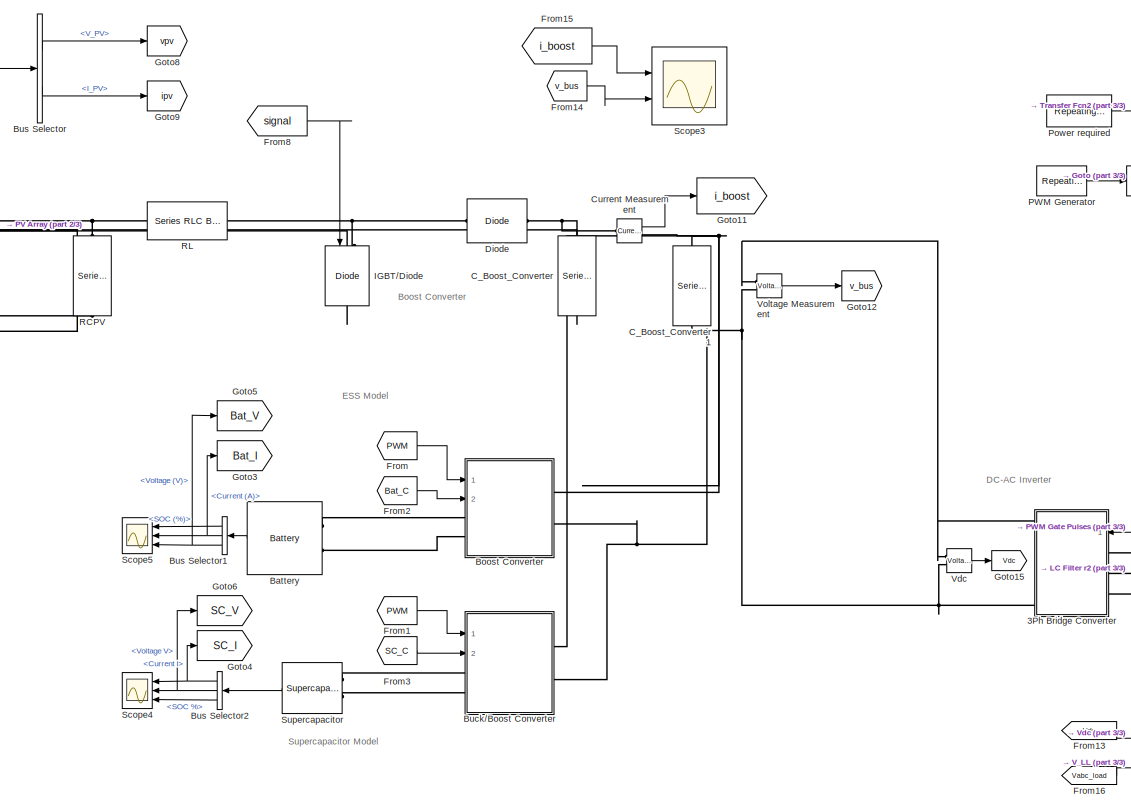
[diagram: root canvas - part 1/3, center side, full height]
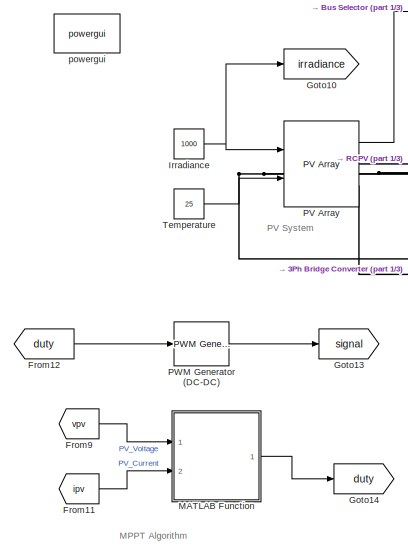
[diagram: root canvas - part 2/3, middle left region]
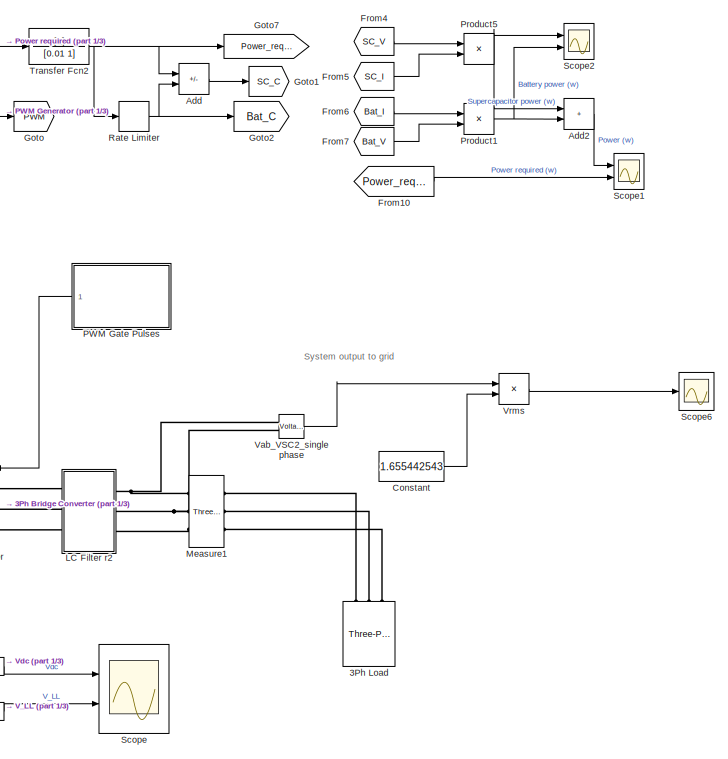
[diagram: root canvas - part 3/3, right side, full height]
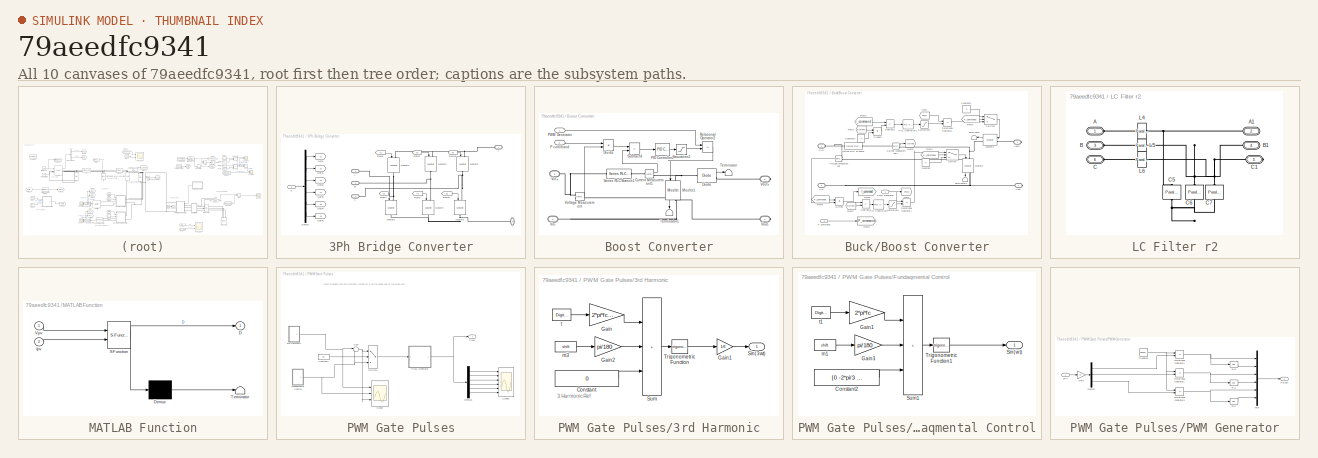
[diagram: thumbnail index - all 10 canvases of the model, root first then tree order]
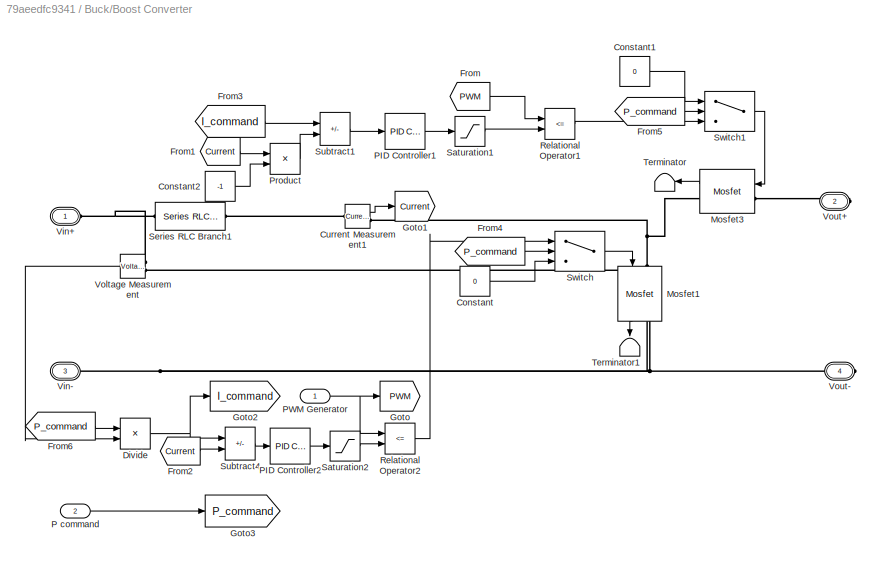
MODEL slx_79aeedfc9341
KIND model
CONFIG AbsTol = auto
CONFIG EnableMultiTasking = on
CONFIG FixedStep = auto
CONFIG MaxStep = auto
CONFIG MinStep = auto
CONFIG RelTol = 1e-3
CONFIG SampleTimeConstraint = Unconstrained
CONFIG SolverName = ode23s
CONFIG StartTime = 0.0
CONFIG StopTime = 2000
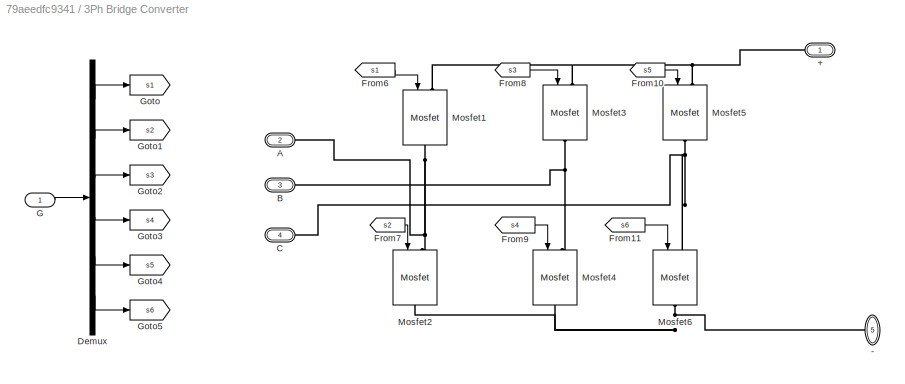
BLOCK [SubSystem] 3Ph Bridge Converter
  Ports = [1, 0, 0, 0, 0, 3, 2]
  RequestExecContextInheritance = off
BLOCK [PMIOPort] 3Ph Bridge Converter/+
  Side = Right
BLOCK [PMIOPort] 3Ph Bridge Converter/-
  Port = 5
  Side = Right
BLOCK [PMIOPort] 3Ph Bridge Converter/A
  Port = 2
  Side = Left
BLOCK [PMIOPort] 3Ph Bridge Converter/B
  Port = 3
  Side = Left
BLOCK [PMIOPort] 3Ph Bridge Converter/C
  Port = 4
  Side = Left
BLOCK [Demux] 3Ph Bridge Converter/Demux
  Outputs = 6
  Ports = [1, 6]
BLOCK [From] 3Ph Bridge Converter/From10
  CloseFcn = tagdialog Close
  GotoTag = s5
BLOCK [From] 3Ph Bridge Converter/From11
  CloseFcn = tagdialog Close
  GotoTag = s6
BLOCK [From] 3Ph Bridge Converter/From6
  CloseFcn = tagdialog Close
  GotoTag = s1
BLOCK [From] 3Ph Bridge Converter/From7
  CloseFcn = tagdialog Close
  GotoTag = s2
BLOCK [From] 3Ph Bridge Converter/From8
  CloseFcn = tagdialog Close
  GotoTag = s3
BLOCK [From] 3Ph Bridge Converter/From9
  CloseFcn = tagdialog Close
  GotoTag = s4
BLOCK [Inport] 3Ph Bridge Converter/G
BLOCK [Goto] 3Ph Bridge Converter/Goto
  GotoTag = s1
BLOCK [Goto] 3Ph Bridge Converter/Goto1
  GotoTag = s2
BLOCK [Goto] 3Ph Bridge Converter/Goto2
  GotoTag = s3
BLOCK [Goto] 3Ph Bridge Converter/Goto3
  GotoTag = s4
BLOCK [Goto] 3Ph Bridge Converter/Goto4
  GotoTag = s5
BLOCK [Goto] 3Ph Bridge Converter/Goto5
  GotoTag = s6
BLOCK [Reference] 3Ph Bridge Converter/Mosfet1  REF=spsMosfetLib/Mosfet
  NameLocation = left
  Ports = [1, 0, 0, 0, 0, 1, 1]
  SourceBlock = spsMosfetLib/Mosfet
  SourceProductBaseCode = PS
  SourceType = Mosfet
BLOCK [Reference] 3Ph Bridge Converter/Mosfet2  REF=spsMosfetLib/Mosfet
  NameLocation = left
  Ports = [1, 0, 0, 0, 0, 1, 1]
  SourceBlock = spsMosfetLib/Mosfet
  SourceProductBaseCode = PS
  SourceType = Mosfet
BLOCK [Reference] 3Ph Bridge Converter/Mosfet3  REF=spsMosfetLib/Mosfet
  NameLocation = left
  Ports = [1, 0, 0, 0, 0, 1, 1]
  SourceBlock = spsMosfetLib/Mosfet
  SourceProductBaseCode = PS
  SourceType = Mosfet
BLOCK [Reference] 3Ph Bridge Converter/Mosfet4  REF=spsMosfetLib/Mosfet
  NameLocation = left
  Ports = [1, 0, 0, 0, 0, 1, 1]
  SourceBlock = spsMosfetLib/Mosfet
  SourceProductBaseCode = PS
  SourceType = Mosfet
BLOCK [Reference] 3Ph Bridge Converter/Mosfet5  REF=spsMosfetLib/Mosfet
  NameLocation = left
  Ports = [1, 0, 0, 0, 0, 1, 1]
  SourceBlock = spsMosfetLib/Mosfet
  SourceProductBaseCode = PS
  SourceType = Mosfet
BLOCK [Reference] 3Ph Bridge Converter/Mosfet6  REF=spsMosfetLib/Mosfet
  NameLocation = left
  Ports = [1, 0, 0, 0, 0, 1, 1]
  SourceBlock = spsMosfetLib/Mosfet
  SourceProductBaseCode = PS
  SourceType = Mosfet
BLOCK [Reference] 3Ph Load   REF=spsThreePhaseParallelRLCLoadLib/Three-Phase
Parallel RLC Load
  AttributesFormatString = \n
  NameLocation = right
  Ports = [0, 0, 0, 0, 0, 3]
  SourceBlock = spsThreePhaseParallelRLCLoadLib/Three-Phase\nParallel RLC Load
  SourceProductBaseCode = PS
  SourceType = Three-Phase Parallel RLC Load
BLOCK [Sum] Add
  IconShape = rectangular
  Inputs = +-
  Ports = [2, 1]
BLOCK [Sum] Add2
  IconShape = rectangular
  Ports = [2, 1]
BLOCK [Reference] Battery  REF=spsBatteryLib/Battery
  Ports = [0, 1, 0, 0, 0, 2]
  SourceBlock = spsBatteryLib/Battery
  SourceProductBaseCode = PS
  SourceType = Battery
BLOCK [SubSystem] Boost Converter
  Ports = [2, 0, 0, 0, 0, 2, 2]
  RequestExecContextInheritance = off
BLOCK [Reference] Boost Converter/Current Measurement1  REF=spsCurrentMeasurementLib/Current Measurement
  Ports = [0, 1, 0, 0, 0, 1, 1]
  SourceBlock = spsCurrentMeasurementLib/Current Measurement
  SourceProductBaseCode = PS
  SourceType = Current Measurement
BLOCK [Reference] Boost Converter/Diode  REF=spsDiodeLib/Diode
  Ports = [0, 1, 0, 0, 0, 1, 1]
  SourceBlock = spsDiodeLib/Diode
  SourceProductBaseCode = PS
  SourceType = Diode
BLOCK [Product] Boost Converter/Divide
  Inputs = */
  Ports = [2, 1]
BLOCK [Reference] Boost Converter/Mosfet1  REF=spsMosfetLib/Mosfet
  NameLocation = left
  Ports = [1, 1, 0, 0, 0, 1, 1]
  SourceBlock = spsMosfetLib/Mosfet
  SourceProductBaseCode = PS
  SourceType = Mosfet
BLOCK [Inport] Boost Converter/P command
  Port = 2
BLOCK [Reference] Boost Converter/PID Controller2  REF=slpidlib/PID Controller
  Ports = [1, 1]
  SourceBlock = slpidlib/PID Controller
  SourceProductBaseCode = SL
  SourceType = PID 1dof
BLOCK [Inport] Boost Converter/PWM Generator
BLOCK [RelationalOperator] Boost Converter/Relational Operator2
  InputSameDT = off
  Operator = <=
  OutDataTypeStr = boolean
  Ports = [2, 1]
BLOCK [Saturate] Boost Converter/Saturation2
  LowerLimit = -1
  UpperLimit = 1
BLOCK [Reference] Boost Converter/Series RLC Branch1  REF=spsSeriesRLCBranchLib/Series RLC Branch
  Ports = [0, 0, 0, 0, 0, 1, 1]
  SourceBlock = spsSeriesRLCBranchLib/Series RLC Branch
  SourceProductBaseCode = PS
  SourceType = Series RLC Branch
BLOCK [Sum] Boost Converter/Subtract4
  IconShape = rectangular
  Inputs = +-
  Ports = [2, 1]
BLOCK [Terminator] Boost Converter/Terminator
BLOCK [Terminator] Boost Converter/Terminator1
  NameLocation = left
BLOCK [PMIOPort] Boost Converter/Vin+
  Side = Left
  Tag = PMCPort
BLOCK [PMIOPort] Boost Converter/Vin-
  Port = 3
  Side = Left
  Tag = PMCPort
BLOCK [Reference] Boost Converter/Voltage Measurement  REF=spsVoltageMeasurementLib/Voltage Measurement
  Ports = [0, 1, 0, 0, 0, 2]
  SourceBlock = spsVoltageMeasurementLib/Voltage Measurement
  SourceProductBaseCode = PS
  SourceType = Voltage Measurement
BLOCK [PMIOPort] Boost Converter/Vout+
  NameLocation = top
  Port = 2
  Side = Right
  Tag = PMCPort
BLOCK [PMIOPort] Boost Converter/Vout-
  NameLocation = top
  Port = 4
  Side = Right
  Tag = PMCPort
BLOCK [SubSystem] Buck//Boost Converter
  Ports = [2, 0, 0, 0, 0, 2, 2]
  RequestExecContextInheritance = off
BLOCK [Constant] Buck//Boost Converter/Constant
  Value = 0
BLOCK [Constant] Buck//Boost Converter/Constant1
  Value = 0
BLOCK [Constant] Buck//Boost Converter/Constant2
  Value = -1
BLOCK [Reference] Buck//Boost Converter/Current Measurement1  REF=spsCurrentMeasurementLib/Current Measurement
  Ports = [0, 1, 0, 0, 0, 1, 1]
  SourceBlock = spsCurrentMeasurementLib/Current Measurement
  SourceProductBaseCode = PS
  SourceType = Current Measurement
BLOCK [Product] Buck//Boost Converter/Divide
  Inputs = */
  Ports = [2, 1]
BLOCK [From] Buck//Boost Converter/From
  GotoTag = PWM
BLOCK [From] Buck//Boost Converter/From1
  GotoTag = Current
BLOCK [From] Buck//Boost Converter/From2
  GotoTag = Current
BLOCK [From] Buck//Boost Converter/From3
  GotoTag = I_command
BLOCK [From] Buck//Boost Converter/From4
  GotoTag = P_command
BLOCK [From] Buck//Boost Converter/From5
  GotoTag = P_command
BLOCK [From] Buck//Boost Converter/From6
  GotoTag = P_command
BLOCK [Goto] Buck//Boost Converter/Goto
  GotoTag = PWM
BLOCK [Goto] Buck//Boost Converter/Goto1
  GotoTag = Current
BLOCK [Goto] Buck//Boost Converter/Goto2
  GotoTag = I_command
BLOCK [Goto] Buck//Boost Converter/Goto3
  GotoTag = P_command
BLOCK [Reference] Buck//Boost Converter/Mosfet1  REF=spsMosfetLib/Mosfet
  NameLocation = left
  Ports = [1, 1, 0, 0, 0, 1, 1]
  SourceBlock = spsMosfetLib/Mosfet
  SourceProductBaseCode = PS
  SourceType = Mosfet
BLOCK [Reference] Buck//Boost Converter/Mosfet3  REF=spsMosfetLib/Mosfet
  NameLocation = top
  Ports = [1, 1, 0, 0, 0, 1, 1]
  SourceBlock = spsMosfetLib/Mosfet
  SourceProductBaseCode = PS
  SourceType = Mosfet
BLOCK [Inport] Buck//Boost Converter/P command
  Port = 2
BLOCK [Reference] Buck//Boost Converter/PID Controller1  REF=slpidlib/PID Controller
  Ports = [1, 1]
  SourceBlock = slpidlib/PID Controller
  SourceProductBaseCode = SL
  SourceType = PID 1dof
BLOCK [Reference] Buck//Boost Converter/PID Controller2  REF=slpidlib/PID Controller
  Ports = [1, 1]
  SourceBlock = slpidlib/PID Controller
  SourceProductBaseCode = SL
  SourceType = PID 1dof
BLOCK [Inport] Buck//Boost Converter/PWM Generator
BLOCK [Product] Buck//Boost Converter/Product
  Ports = [2, 1]
  RndMeth = Zero
BLOCK [RelationalOperator] Buck//Boost Converter/Relational Operator1
  InputSameDT = off
  Operator = <=
  OutDataTypeStr = boolean
  Ports = [2, 1]
BLOCK [RelationalOperator] Buck//Boost Converter/Relational Operator2
  InputSameDT = off
  Operator = <=
  OutDataTypeStr = boolean
  Ports = [2, 1]
BLOCK [Saturate] Buck//Boost Converter/Saturation1
  LowerLimit = -1
  UpperLimit = 1
BLOCK [Saturate] Buck//Boost Converter/Saturation2
  LowerLimit = -1
  UpperLimit = 1
BLOCK [Reference] Buck//Boost Converter/Series RLC Branch1  REF=spsSeriesRLCBranchLib/Series RLC Branch
  Ports = [0, 0, 0, 0, 0, 1, 1]
  SourceBlock = spsSeriesRLCBranchLib/Series RLC Branch
  SourceProductBaseCode = PS
  SourceType = Series RLC Branch
BLOCK [Sum] Buck//Boost Converter/Subtract1
  IconShape = rectangular
  Inputs = --
  Ports = [2, 1]
BLOCK [Sum] Buck//Boost Converter/Subtract4
  IconShape = rectangular
  Inputs = +-
  Ports = [2, 1]
BLOCK [Switch] Buck//Boost Converter/Switch
  Criteria = u2 > Threshold
  InputSameDT = off
  SaturateOnIntegerOverflow = off
BLOCK [Switch] Buck//Boost Converter/Switch1
  Criteria = u2 > Threshold
  InputSameDT = off
  SaturateOnIntegerOverflow = off
BLOCK [Terminator] Buck//Boost Converter/Terminator
  NameLocation = top
BLOCK [Terminator] Buck//Boost Converter/Terminator1
  NameLocation = left
BLOCK [PMIOPort] Buck//Boost Converter/Vin+
  Side = Left
  Tag = PMCPort
BLOCK [PMIOPort] Buck//Boost Converter/Vin-
  Port = 3
  Side = Left
  Tag = PMCPort
BLOCK [Reference] Buck//Boost Converter/Voltage Measurement  REF=spsVoltageMeasurementLib/Voltage Measurement
  NameLocation = top
  Ports = [0, 1, 0, 0, 0, 2]
  SourceBlock = spsVoltageMeasurementLib/Voltage Measurement
  SourceProductBaseCode = PS
  SourceType = Voltage Measurement
BLOCK [PMIOPort] Buck//Boost Converter/Vout+
  NameLocation = top
  Port = 2
  Side = Right
  Tag = PMCPort
BLOCK [PMIOPort] Buck//Boost Converter/Vout-
  NameLocation = top
  Port = 4
  Side = Right
  Tag = PMCPort
BLOCK [BusSelector] Bus Selector
  OutputSignals = V_PV,I_PV
  Ports = [1, 2]
BLOCK [BusSelector] Bus Selector1
  OutputSignals = SOC (%),Current (A),Voltage (V)
  Ports = [1, 3]
BLOCK [BusSelector] Bus Selector2
  OutputSignals = Current I,Voltage V,SOC %
  Ports = [1, 3]
BLOCK [Reference] C_Boost_Converter  REF=spsSeriesRLCBranchLib/Series RLC Branch
  NameLocation = left
  Ports = [0, 0, 0, 0, 0, 1, 1]
  SourceBlock = spsSeriesRLCBranchLib/Series RLC Branch
  SourceProductBaseCode = PS
  SourceType = Series RLC Branch
BLOCK [Reference] C_Boost_Converter1  REF=spsSeriesRLCBranchLib/Series RLC Branch
  NameLocation = left
  Ports = [0, 0, 0, 0, 0, 1, 1]
  SourceBlock = spsSeriesRLCBranchLib/Series RLC Branch
  SourceProductBaseCode = PS
  SourceType = Series RLC Branch
BLOCK [Constant] Constant
  Value = 1.655442543
BLOCK [Reference] Current Measurement  REF=spsCurrentMeasurementLib/Current Measurement
  Ports = [0, 1, 0, 0, 0, 1, 1]
  SourceBlock = spsCurrentMeasurementLib/Current Measurement
  SourceProductBaseCode = PS
  SourceType = Current Measurement
  UserDataPersistent = on
BLOCK [Reference] Diode  REF=spsDiodeLib/Diode
  Ports = [0, 0, 0, 0, 0, 1, 1]
  SourceBlock = spsDiodeLib/Diode
  SourceProductBaseCode = PS
  SourceType = Diode
BLOCK [From] From
  GotoTag = PWM
BLOCK [From] From1
  GotoTag = PWM
BLOCK [From] From10
  GotoTag = Power_required
BLOCK [From] From11
  GotoTag = ipv
  TagVisibility = global
BLOCK [From] From12
  GotoTag = duty
  TagVisibility = global
BLOCK [From] From13
  GotoTag = Vdc
  TagVisibility = global
BLOCK [From] From14
  GotoTag = v_bus
  TagVisibility = global
BLOCK [From] From15
  GotoTag = i_boost
  TagVisibility = global
BLOCK [From] From16
  GotoTag = Vabc_load
  TagVisibility = global
BLOCK [From] From2
  GotoTag = Bat_C
BLOCK [From] From3
  GotoTag = SC_C
BLOCK [From] From4
  GotoTag = SC_V
BLOCK [From] From5
  GotoTag = SC_I
BLOCK [From] From6
  GotoTag = Bat_I
BLOCK [From] From7
  GotoTag = Bat_V
BLOCK [From] From8
  GotoTag = signal
  TagVisibility = global
BLOCK [From] From9
  GotoTag = vpv
  TagVisibility = global
BLOCK [Goto] Goto
  GotoTag = PWM
BLOCK [Goto] Goto1
  GotoTag = SC_C
BLOCK [Goto] Goto10
  GotoTag = irradiance
  TagVisibility = global
BLOCK [Goto] Goto11
  GotoTag = i_boost
  TagVisibility = global
BLOCK [Goto] Goto12
  GotoTag = v_bus
  TagVisibility = global
BLOCK [Goto] Goto13
  GotoTag = signal
  TagVisibility = global
BLOCK [Goto] Goto14
  GotoTag = duty
  TagVisibility = global
BLOCK [Goto] Goto15
  GotoTag = Vdc
  TagVisibility = global
BLOCK [Goto] Goto2
  GotoTag = Bat_C
BLOCK [Goto] Goto3
  GotoTag = Bat_I
BLOCK [Goto] Goto4
  GotoTag = SC_I
BLOCK [Goto] Goto5
  GotoTag = Bat_V
BLOCK [Goto] Goto6
  GotoTag = SC_V
BLOCK [Goto] Goto7
  GotoTag = Power_required
BLOCK [Goto] Goto8
  GotoTag = vpv
  TagVisibility = global
BLOCK [Goto] Goto9
  GotoTag = ipv
  TagVisibility = global
BLOCK [Reference] IGBT//Diode  REF=spsIGBTDiodeLib/IGBT//Diode
  NameLocation = left
  Ports = [1, 0, 0, 0, 0, 1, 1]
  SourceBlock = spsIGBTDiodeLib/IGBT//Diode
  SourceProductBaseCode = PS
  SourceType = IGBT/Diode
BLOCK [Constant] Irradiance
  Value = 1000
BLOCK [SubSystem] LC Filter r2
  Ports = [0, 0, 0, 0, 0, 3, 3]
  RequestExecContextInheritance = off
BLOCK [PMIOPort] LC Filter r2/A
  Side = Left
BLOCK [PMIOPort] LC Filter r2/A1
  Port = 2
  Side = Right
BLOCK [PMIOPort] LC Filter r2/B
  Port = 3
  Side = Left
BLOCK [PMIOPort] LC Filter r2/B1
  Port = 4
  Side = Right
BLOCK [PMIOPort] LC Filter r2/C
  Port = 6
  Side = Left
BLOCK [PMIOPort] LC Filter r2/C1
  Port = 5
  Side = Right
BLOCK [Reference] LC Filter r2/C5  REF=spsParallelRLCBranchLib/Parallel RLC Branch
  AttributesFormatString = \n
  NameLocation = left
  Ports = [0, 0, 0, 0, 0, 1, 1]
  SourceBlock = spsParallelRLCBranchLib/Parallel RLC Branch
  SourceProductBaseCode = PS
  SourceType = Parallel RLC Branch
BLOCK [Reference] LC Filter r2/C6  REF=spsParallelRLCBranchLib/Parallel RLC Branch
  AttributesFormatString = \n
  NameLocation = left
  Ports = [0, 0, 0, 0, 0, 1, 1]
  SourceBlock = spsParallelRLCBranchLib/Parallel RLC Branch
  SourceProductBaseCode = PS
  SourceType = Parallel RLC Branch
BLOCK [Reference] LC Filter r2/C7  REF=spsParallelRLCBranchLib/Parallel RLC Branch
  AttributesFormatString = \n
  NameLocation = left
  Ports = [0, 0, 0, 0, 0, 1, 1]
  SourceBlock = spsParallelRLCBranchLib/Parallel RLC Branch
  SourceProductBaseCode = PS
  SourceType = Parallel RLC Branch
BLOCK [Reference] LC Filter r2/L4  REF=spsParallelRLCBranchLib/Parallel RLC Branch
  AttributesFormatString = \n
  NameLocation = top
  Ports = [0, 0, 0, 0, 0, 1, 1]
  SourceBlock = spsParallelRLCBranchLib/Parallel RLC Branch
  SourceProductBaseCode = PS
  SourceType = Parallel RLC Branch
BLOCK [Reference] LC Filter r2/L5  REF=spsParallelRLCBranchLib/Parallel RLC Branch
  AttributesFormatString = \n
  Ports = [0, 0, 0, 0, 0, 1, 1]
  SourceBlock = spsParallelRLCBranchLib/Parallel RLC Branch
  SourceProductBaseCode = PS
  SourceType = Parallel RLC Branch
BLOCK [Reference] LC Filter r2/L6  REF=spsParallelRLCBranchLib/Parallel RLC Branch
  AttributesFormatString = \n
  Ports = [0, 0, 0, 0, 0, 1, 1]
  SourceBlock = spsParallelRLCBranchLib/Parallel RLC Branch
  SourceProductBaseCode = PS
  SourceType = Parallel RLC Branch
BLOCK [SubSystem] MATLAB Function
  ErrorFcn = Stateflow.Translate.translate
  PermitHierarchicalResolution = ExplicitOnly
  Ports = [2, 1]
  RequestExecContextInheritance = off
  SFBlockType = MATLAB Function
  TreatAsAtomicUnit = on
BLOCK [Demux] MATLAB Function/ Demux 
  Outputs = 1
  Ports = [1, 1]
BLOCK [S-Function] MATLAB Function/ SFunction 
  EnableBusSupport = on
  FunctionName = sf_sfun
  PortCounts = [2 2]
  Ports = [2, 2]
  SFcnIsStateOwnerBlock = off
  SFunctionDeploymentMode = off
  Tag = Stateflow S-Function 2
BLOCK [Terminator] MATLAB Function/ Terminator 
BLOCK [Outport] MATLAB Function/D
BLOCK [Inport] MATLAB Function/Ipv
  Port = 2
BLOCK [Inport] MATLAB Function/Vpv
BLOCK [Reference] Measure1  REF=spsThreePhaseVIMeasurementLib/Three-Phase
V-I Measurement
  Ports = [0, 0, 0, 0, 0, 3, 3]
  SourceBlock = spsThreePhaseVIMeasurementLib/Three-Phase\nV-I Measurement
  SourceProductBaseCode = PS
  SourceType = Three-Phase VI Measurement
BLOCK [Reference] PV Array  REF=spsPVArrayLib/PV Array
  Ports = [2, 1, 0, 0, 0, 0, 2]
  SourceBlock = spsPVArrayLib/PV Array
  SourceProductBaseCode = PS
  SourceType = PV array
BLOCK [SubSystem] PWM Gate Pulses
  Ports = [0, 1]
  RequestExecContextInheritance = off
BLOCK [SubSystem] PWM Gate Pulses/3rd Harmonic
  Ports = [0, 1]
  RequestExecContextInheritance = off
BLOCK [Constant] PWM Gate Pulses/3rd Harmonic/Constant
  SampleTime = Ts
  Value = 0
BLOCK [Gain] PWM Gate Pulses/3rd Harmonic/Gain
  Gain = 2*pi*fc*3
  OutDataTypeStr = Inherit: Same as input
  ParamDataTypeStr = Inherit: Same as input
  SaturateOnIntegerOverflow = on
BLOCK [Gain] PWM Gate Pulses/3rd Harmonic/Gain1
  Gain = 1/6
BLOCK [Gain] PWM Gate Pulses/3rd Harmonic/Gain2
  Gain = pi/180
  OutDataTypeStr = Inherit: Same as input
  ParamDataTypeStr = Inherit: Same as input
  SaturateOnIntegerOverflow = on
BLOCK [Outport] PWM Gate Pulses/3rd Harmonic/Sin(3wt)
BLOCK [Sum] PWM Gate Pulses/3rd Harmonic/Sum
  IconShape = rectangular
  InputSameDT = on
  Inputs = +++
  OutDataTypeStr = Inherit: Same as first input
  Ports = [3, 1]
  SampleTime = Ts
  SaturateOnIntegerOverflow = on
BLOCK [Trigonometry] PWM Gate Pulses/3rd Harmonic/Trigonometric Function
  Ports = [1, 1]
  SampleTime = Ts
BLOCK [Constant] PWM Gate Pulses/3rd Harmonic/m3
  SampleTime = Ts
  Value = shift
BLOCK [DigitalClock] PWM Gate Pulses/3rd Harmonic/t
  SampleTime = Ts
BLOCK [Constant] PWM Gate Pulses/Constant1
  SampleTime = Ts
  Value = inj
BLOCK [Demux] PWM Gate Pulses/Demux1
  Outputs = 6
  Ports = [1, 6]
BLOCK [SubSystem] PWM Gate Pulses/Fundaqmental Control
  Ports = [0, 1]
  RequestExecContextInheritance = off
BLOCK [Constant] PWM Gate Pulses/Fundaqmental Control/Constant2
  SampleTime = Ts
  Value = [0 -2*pi/3 2*pi/3]
BLOCK [Gain] PWM Gate Pulses/Fundaqmental Control/Gain1
  Gain = 2*pi*fc
  OutDataTypeStr = Inherit: Same as input
  ParamDataTypeStr = Inherit: Same as input
  SaturateOnIntegerOverflow = on
BLOCK [Gain] PWM Gate Pulses/Fundaqmental Control/Gain3
  Gain = pi/180
  OutDataTypeStr = Inherit: Same as input
  ParamDataTypeStr = Inherit: Same as input
  SaturateOnIntegerOverflow = on
BLOCK [Outport] PWM Gate Pulses/Fundaqmental Control/Sin(wt)
BLOCK [Sum] PWM Gate Pulses/Fundaqmental Control/Sum1
  IconShape = rectangular
  InputSameDT = on
  Inputs = +++
  OutDataTypeStr = Inherit: Same as first input
  Ports = [3, 1]
  SampleTime = Ts
  SaturateOnIntegerOverflow = on
BLOCK [Trigonometry] PWM Gate Pulses/Fundaqmental Control/Trigonometric Function1
  Ports = [1, 1]
  SampleTime = Ts
BLOCK [Constant] PWM Gate Pulses/Fundaqmental Control/m1
  SampleTime = Ts
  Value = shift
BLOCK [DigitalClock] PWM Gate Pulses/Fundaqmental Control/t1
  SampleTime = Ts
BLOCK [Outport] PWM Gate Pulses/PWM
  NameLocation = top
BLOCK [SubSystem] PWM Gate Pulses/PWM Generator
  InitFcn = Ts=2e-6
  Ports = [1, 1]
  RequestExecContextInheritance = off
BLOCK [Inport] PWM Gate Pulses/PWM Generator/3Ph
BLOCK [Logic] PWM Gate Pulses/PWM Generator/BL1
  Inputs = 1
  NameLocation = top
  Operator = NOT
  Ports = [1, 1]
  SampleTime = Ts
BLOCK [Logic] PWM Gate Pulses/PWM Generator/BL2
  Inputs = 1
  NameLocation = top
  Operator = NOT
  Ports = [1, 1]
  SampleTime = Ts
BLOCK [Logic] PWM Gate Pulses/PWM Generator/BL5
  Inputs = 1
  NameLocation = top
  Operator = NOT
  Ports = [1, 1]
  SampleTime = Ts
BLOCK [Demux] PWM Gate Pulses/PWM Generator/Demux
  Outputs = 3
  Ports = [1, 3]
BLOCK [Gain] PWM Gate Pulses/PWM Generator/Gain
  Gain = m
BLOCK [Mux] PWM Gate Pulses/PWM Generator/Mux
  DisplayOption = bar
  Inputs = 6
  Ports = [6, 1]
BLOCK [Outport] PWM Gate Pulses/PWM Generator/Pulses
BLOCK [RelationalOperator] PWM Gate Pulses/PWM Generator/Relational Operator1
  InputSameDT = off
  Operator = <=
  Ports = [2, 1]
BLOCK [RelationalOperator] PWM Gate Pulses/PWM Generator/Relational Operator2
  InputSameDT = off
  Operator = <=
  Ports = [2, 1]
BLOCK [RelationalOperator] PWM Gate Pulses/PWM Generator/Relational Operator3
  InputSameDT = off
  Operator = <=
  Ports = [2, 1]
BLOCK [Reference] PWM Gate Pulses/PWM Generator/Triangle2  REF=simulink/Sources/Repeating
Sequence
  Ports = [0, 1]
  SourceBlock = simulink/Sources/Repeating\nSequence
  SourceProductBaseCode = SL
  SourceType = Repeating table
BLOCK [Scope] PWM Gate Pulses/Scope
  Floating = off
  NumInputPorts = 3
  Ports = [3]
  ScopeSpecificationString = C++SS(StrPVP('Location','[1, 53, 1921, 1031]'),StrPVP('Open','off'),MxPVP('AxesTitles',54,'struct(''axes1'',''%<SignalLabel>'',''axes2'',''%<SignalLabel>'',''axes3'',''%<SignalLabel>'')'),StrPVP('YMin','-1~-1.25~-5'),StrPVP('YMax','1~1.25~5'),StrPVP('SaveName','ScopeData3'),StrPVP('DataFormat','StructureWithTime'),StrPVP('BlockParamSampleTime','0'),StrPVP('LimitDataPoints','on'),StrPVP('Decimation...<+45ch>
BLOCK [Scope] PWM Gate Pulses/Scope1
  Floating = off
  NumInputPorts = 6
  Ports = [6]
  ScopeSpecificationString = C++SS(StrPVP('Location','[188, 390, 512, 629]'),StrPVP('Open','off'),MxPVP('AxesTitles',54,'struct(''axes1'',''%<SignalLabel>'',''axes2'',''%<SignalLabel>'',''axes3'',''%<SignalLabel>'',''axes4'',''%<SignalLabel>'',''axes5'',''%<SignalLabel>'',''axes6'',''%<SignalLabel>'')'),StrPVP('YMin','-5~-5~-5~-5~-5~-5'),StrPVP('YMax','5~5~5~5~5~5'),StrPVP('SaveName','ScopeData1'),StrPVP('DataFormat','Structu...<+143ch>
BLOCK [Sum] PWM Gate Pulses/Sum
  Inputs = |++
  Ports = [2, 1]
BLOCK [Switch] PWM Gate Pulses/Switch1
  SampleTime = Ts
  Threshold = 0.5
BLOCK [Reference] PWM Generator  REF=simulink/Sources/Repeating
Sequence
  Ports = [0, 1]
  SourceBlock = simulink/Sources/Repeating\nSequence
  SourceProductBaseCode = SL
  SourceType = Repeating table
BLOCK [Reference] PWM Generator (DC-DC)  REF=spsPWMGeneratorDCDCLib/PWM Generator
(DC-DC)
  Ports = [1, 1]
  SourceBlock = spsPWMGeneratorDCDCLib/PWM Generator\n(DC-DC)
  SourceProductBaseCode = PS
  SourceType = PWM Generator (DC-DC)
BLOCK [Reference] Power required  REF=simulink/Sources/Repeating
Sequence
  Ports = [0, 1]
  SourceBlock = simulink/Sources/Repeating\nSequence
  SourceProductBaseCode = SL
  SourceType = Repeating table
BLOCK [Product] Product1
  Ports = [2, 1]
  RndMeth = Zero
BLOCK [Product] Product5
  Ports = [2, 1]
  RndMeth = Zero
BLOCK [Reference] RCPV  REF=spsSeriesRLCBranchLib/Series RLC Branch
  NameLocation = left
  Ports = [0, 0, 0, 0, 0, 1, 1]
  SourceBlock = spsSeriesRLCBranchLib/Series RLC Branch
  SourceProductBaseCode = PS
  SourceType = Series RLC Branch
BLOCK [Reference] RL  REF=spsSeriesRLCBranchLib/Series RLC Branch
  NameLocation = top
  Ports = [0, 0, 0, 0, 0, 1, 1]
  SourceBlock = spsSeriesRLCBranchLib/Series RLC Branch
  SourceProductBaseCode = PS
  SourceType = Series RLC Branch
BLOCK [RateLimiter] Rate Limiter
  FallingSlewLimit = -300
  RisingSlewLimit = 300
  SampleTimeMode = inherited
BLOCK [Scope] Scope
  Floating = off
  NumInputPorts = 2
  Ports = [2]
  ScopeSpecificationString = Simulink.scopes.TimeScopeBlockCfg('CurrentConfiguration', extmgr.ConfigurationSet(extmgr.Configuration('Core','General UI',true),extmgr.Configuration('Core','Source UI',true),extmgr.Configuration('Sources','WiredSimulink',true,'DataLogging',true,'DataLoggingSaveFormat','StructureWithTime','DataLoggingMaxPoints','1000000','DataLoggingLimitDataPoints',true,'DataLoggingDecimation','1','DataLoggingDec...<+2446ch>
BLOCK [Scope] Scope1
  Floating = off
  NameLocation = top
  NumInputPorts = 2
  Ports = [2]
  ScopeSpecificationString = Simulink.scopes.TimeScopeBlockCfg('CurrentConfiguration', extmgr.ConfigurationSet(extmgr.Configuration('Core','General UI',true,'FigureColor',[1 1 1]),extmgr.Configuration('Core','Source UI',true),extmgr.Configuration('Sources','WiredSimulink',true,'DataLoggingSaveFormat','Array','DataLoggingDecimation','1','DataLoggingDecimateData',true),extmgr.Configuration('Visuals','Time Domain',true,'Serializ...<+2525ch>
BLOCK [Scope] Scope2
  Floating = off
  NameLocation = top
  NumInputPorts = 2
  Ports = [2]
  ScopeSpecificationString = Simulink.scopes.TimeScopeBlockCfg('CurrentConfiguration', extmgr.ConfigurationSet(extmgr.Configuration('Core','General UI',true,'FigureColor',[1 1 1]),extmgr.Configuration('Core','Source UI',true),extmgr.Configuration('Sources','WiredSimulink',true,'DataLoggingSaveFormat','Array','DataLoggingDecimation','1','DataLoggingDecimateData',true),extmgr.Configuration('Visuals','Time Domain',true,'Serializ...<+2450ch>
BLOCK [Scope] Scope3
  Floating = off
  NumInputPorts = 2
  Ports = [2]
  ScopeSpecificationString = Simulink.scopes.TimeScopeBlockCfg('CurrentConfiguration', extmgr.ConfigurationSet(extmgr.Configuration('Core','General UI',true),extmgr.Configuration('Core','Source UI',true),extmgr.Configuration('Sources','WiredSimulink',true,'DataLoggingVariableName','ScopeData1'),extmgr.Configuration('Visuals','Time Domain',true,'SerializedDisplays',{struct('MinYLimReal','-148.49445','MaxYLimReal','170.91288','...<+1441ch>
BLOCK [Scope] Scope4
  Floating = off
  NumInputPorts = 3
  Ports = [3]
  ScopeSpecificationString = Simulink.scopes.TimeScopeBlockCfg('CurrentConfiguration', extmgr.ConfigurationSet(extmgr.Configuration('Core','General UI',true,'FigureColor',[1 1 1]),extmgr.Configuration('Core','Source UI',true),extmgr.Configuration('Sources','WiredSimulink',true,'DataLoggingSaveFormat','Array','DataLoggingDecimation','1','DataLoggingDecimateData',true),extmgr.Configuration('Visuals','Time Domain',true,'Serializ...<+3300ch>
BLOCK [Scope] Scope5
  Floating = off
  NumInputPorts = 3
  Ports = [3]
  ScopeSpecificationString = Simulink.scopes.TimeScopeBlockCfg('CurrentConfiguration', extmgr.ConfigurationSet(extmgr.Configuration('Core','General UI',true,'FigureColor',[1 1 1]),extmgr.Configuration('Core','Source UI',true),extmgr.Configuration('Sources','WiredSimulink',true,'DataLoggingSaveFormat','Array','DataLoggingDecimation','1','DataLoggingDecimateData',true),extmgr.Configuration('Visuals','Time Domain',true,'Serializ...<+3305ch>
BLOCK [Scope] Scope6
  Floating = off
  NumInputPorts = 1
  Ports = [1]
  ScopeSpecificationString = Simulink.scopes.TimeScopeBlockCfg('CurrentConfiguration', extmgr.ConfigurationSet(extmgr.Configuration('Core','General UI',true,'FigureColor',[1 1 1]),extmgr.Configuration('Core','Source UI',true),extmgr.Configuration('Sources','WiredSimulink',true,'DataLogging',true,'DataLoggingVariableName','ScopeData2','DataLoggingSaveFormat','StructureWithTime','DataLoggingDecimation','1','DataLoggingDecimateD...<+1809ch>
BLOCK [Reference] Supercapacitor  REF=spsSupercapacitorLib/Supercapacitor
  Ports = [0, 1, 0, 0, 0, 2]
  SourceBlock = spsSupercapacitorLib/Supercapacitor
  SourceProductBaseCode = PS
  SourceType = Supercapacitor
BLOCK [Constant] Temperature
  Value = 25
BLOCK [TransferFcn] Transfer Fcn2
  Denominator = [0.01 1]
BLOCK [Reference] Vab_VSC2_single phase  REF=spsVoltageMeasurementLib/Voltage Measurement
  AttributesFormatString = \n
  Ports = [0, 1, 0, 0, 0, 2]
  SourceBlock = spsVoltageMeasurementLib/Voltage Measurement
  SourceProductBaseCode = PS
  SourceType = Voltage Measurement
  Tag = PoWeRsYsTeMmEaSuReMeNt
BLOCK [Reference] Vdc   REF=spsVoltageMeasurementLib/Voltage Measurement
  AttributesFormatString = \n
  NameLocation = top
  Ports = [0, 1, 0, 0, 0, 2]
  SourceBlock = spsVoltageMeasurementLib/Voltage Measurement
  SourceProductBaseCode = PS
  SourceType = Voltage Measurement
  Tag = PoWeRsYsTeMmEaSuReMeNt
BLOCK [Reference] Voltage Measurement  REF=spsVoltageMeasurementLib/Voltage Measurement
  Ports = [0, 1, 0, 0, 0, 2]
  SourceBlock = spsVoltageMeasurementLib/Voltage Measurement
  SourceProductBaseCode = PS
  SourceType = Voltage Measurement
  UserDataPersistent = on
BLOCK [Product] Vrms
  Ports = [2, 1]
BLOCK [Reference] powergui  REF=spspowerguiLib/powergui
  Ports = []
  Priority = 1
  SourceBlock = spspowerguiLib/powergui
  SourceProductBaseCode = PS
  SourceType = PSB option menu block
ANNOTATION (root): Boost Converter
ANNOTATION (root): DC-AC Inverter
ANNOTATION (root): ESS Model
ANNOTATION (root): MPPT Algorithm
ANNOTATION (root): PV System
ANNOTATION (root): Supercapacitor Model
ANNOTATION (root): System output to grid
ANNOTATION PWM Gate Pulses: Note:To enable the 3rd Harmonic injection, tick the check box of the block properties
ANNOTATION PWM Gate Pulses/3rd Harmonic: 3 Harmonic Ref
LINE 3Ph Bridge Converter/Demux:1 -> 3Ph Bridge Converter/Goto:1
LINE 3Ph Bridge Converter/Demux:2 -> 3Ph Bridge Converter/Goto1:1
LINE 3Ph Bridge Converter/Demux:3 -> 3Ph Bridge Converter/Goto2:1
LINE 3Ph Bridge Converter/Demux:4 -> 3Ph Bridge Converter/Goto3:1
LINE 3Ph Bridge Converter/Demux:5 -> 3Ph Bridge Converter/Goto4:1
LINE 3Ph Bridge Converter/Demux:6 -> 3Ph Bridge Converter/Goto5:1
LINE 3Ph Bridge Converter/From10:1 -> 3Ph Bridge Converter/Mosfet5:1
LINE 3Ph Bridge Converter/From11:1 -> 3Ph Bridge Converter/Mosfet6:1
LINE 3Ph Bridge Converter/From6:1 -> 3Ph Bridge Converter/Mosfet1:1
LINE 3Ph Bridge Converter/From7:1 -> 3Ph Bridge Converter/Mosfet2:1
LINE 3Ph Bridge Converter/From8:1 -> 3Ph Bridge Converter/Mosfet3:1
LINE 3Ph Bridge Converter/From9:1 -> 3Ph Bridge Converter/Mosfet4:1
LINE 3Ph Bridge Converter/G:1 -> 3Ph Bridge Converter/Demux:1
LINE Add2:1 -> Scope1:1
LINE Add:1 -> Goto1:1
LINE Battery:1 -> Bus Selector1:1
LINE Boost Converter/Current Measurement1:1 -> Boost Converter/Subtract4:2
LINE Boost Converter/Diode:1 -> Boost Converter/Terminator:1
LINE Boost Converter/Divide:1 -> Boost Converter/Subtract4:1
LINE Boost Converter/Mosfet1:1 -> Boost Converter/Terminator1:1
LINE Boost Converter/P command:1 -> Boost Converter/Divide:1
LINE Boost Converter/PID Controller2:1 -> Boost Converter/Saturation2:1
LINE Boost Converter/PWM Generator:1 -> Boost Converter/Relational Operator2:1
LINE Boost Converter/Relational Operator2:1 -> Boost Converter/Mosfet1:1
LINE Boost Converter/Saturation2:1 -> Boost Converter/Relational Operator2:2
LINE Boost Converter/Subtract4:1 -> Boost Converter/PID Controller2:1
LINE Boost Converter/Voltage Measurement:1 -> Boost Converter/Divide:2
LINE Buck//Boost Converter/Constant1:1 -> Buck//Boost Converter/Switch1:1
LINE Buck//Boost Converter/Constant2:1 -> Buck//Boost Converter/Product:2
LINE Buck//Boost Converter/Constant:1 -> Buck//Boost Converter/Switch:3
LINE Buck//Boost Converter/Current Measurement1:1 -> Buck//Boost Converter/Goto1:1
NET Buck//Boost Converter/Divide:1 -> Buck//Boost Converter/Goto2:1, Buck//Boost Converter/Subtract4:1
LINE Buck//Boost Converter/From1:1 -> Buck//Boost Converter/Product:1
LINE Buck//Boost Converter/From2:1 -> Buck//Boost Converter/Subtract4:2
LINE Buck//Boost Converter/From3:1 -> Buck//Boost Converter/Subtract1:1
LINE Buck//Boost Converter/From4:1 -> Buck//Boost Converter/Switch:2
LINE Buck//Boost Converter/From5:1 -> Buck//Boost Converter/Switch1:2
LINE Buck//Boost Converter/From6:1 -> Buck//Boost Converter/Divide:1
LINE Buck//Boost Converter/From:1 -> Buck//Boost Converter/Relational Operator1:1
LINE Buck//Boost Converter/Mosfet1:1 -> Buck//Boost Converter/Terminator1:1
LINE Buck//Boost Converter/Mosfet3:1 -> Buck//Boost Converter/Terminator:1
LINE Buck//Boost Converter/P command:1 -> Buck//Boost Converter/Goto3:1
LINE Buck//Boost Converter/PID Controller1:1 -> Buck//Boost Converter/Saturation1:1
LINE Buck//Boost Converter/PID Controller2:1 -> Buck//Boost Converter/Saturation2:1
NET Buck//Boost Converter/PWM Generator:1 -> Buck//Boost Converter/Goto:1, Buck//Boost Converter/Relational Operator2:1
LINE Buck//Boost Converter/Product:1 -> Buck//Boost Converter/Subtract1:2
LINE Buck//Boost Converter/Relational Operator1:1 -> Buck//Boost Converter/Switch1:3
LINE Buck//Boost Converter/Relational Operator2:1 -> Buck//Boost Converter/Switch:1
LINE Buck//Boost Converter/Saturation1:1 -> Buck//Boost Converter/Relational Operator1:2
LINE Buck//Boost Converter/Saturation2:1 -> Buck//Boost Converter/Relational Operator2:2
LINE Buck//Boost Converter/Subtract1:1 -> Buck//Boost Converter/PID Controller1:1
LINE Buck//Boost Converter/Subtract4:1 -> Buck//Boost Converter/PID Controller2:1
LINE Buck//Boost Converter/Switch1:1 -> Buck//Boost Converter/Mosfet3:1
LINE Buck//Boost Converter/Switch:1 -> Buck//Boost Converter/Mosfet1:1
LINE Buck//Boost Converter/Voltage Measurement:1 -> Buck//Boost Converter/Divide:2
LINE Bus Selector1:1 -> Scope5:1
NET Bus Selector1:2 -> Goto3:1, Scope5:2
NET Bus Selector1:3 -> Goto5:1, Scope5:3
NET Bus Selector2:1 -> Goto4:1, Scope4:1
NET Bus Selector2:2 -> Goto6:1, Scope4:2
LINE Bus Selector2:3 -> Scope4:3
LINE Bus Selector:1 -> Goto8:1
LINE Bus Selector:2 -> Goto9:1
LINE Constant:1 -> Vrms:2
LINE Current Measurement:1 -> Goto11:1
LINE From10:1 -> Scope1:2
LINE From11:1 -> MATLAB Function:2
LINE From12:1 -> PWM Generator (DC-DC):1
LINE From13:1 -> Scope:1
LINE From14:1 -> Scope3:2
LINE From15:1 -> Scope3:1
LINE From16:1 -> Scope:2
LINE From1:1 -> Buck//Boost Converter:1
LINE From2:1 -> Boost Converter:2
LINE From3:1 -> Buck//Boost Converter:2
LINE From4:1 -> Product5:1
LINE From5:1 -> Product5:2
LINE From6:1 -> Product1:1
LINE From7:1 -> Product1:2
LINE From8:1 -> IGBT//Diode:1
LINE From9:1 -> MATLAB Function:1
LINE From:1 -> Boost Converter:1
NET Irradiance:1 -> Goto10:1, PV Array:1
LINE MATLAB Function:1 -> Goto14:1
LINE PV Array:1 -> Bus Selector:1
LINE PWM Gate Pulses/3rd Harmonic/Constant:1 -> PWM Gate Pulses/3rd Harmonic/Sum:3
LINE PWM Gate Pulses/3rd Harmonic/Gain1:1 -> PWM Gate Pulses/3rd Harmonic/Sin(3wt):1
LINE PWM Gate Pulses/3rd Harmonic/Gain2:1 -> PWM Gate Pulses/3rd Harmonic/Sum:2
LINE PWM Gate Pulses/3rd Harmonic/Gain:1 -> PWM Gate Pulses/3rd Harmonic/Sum:1
LINE PWM Gate Pulses/3rd Harmonic/Sum:1 -> PWM Gate Pulses/3rd Harmonic/Trigonometric Function:1
LINE PWM Gate Pulses/3rd Harmonic/Trigonometric Function:1 -> PWM Gate Pulses/3rd Harmonic/Gain1:1
LINE PWM Gate Pulses/3rd Harmonic/m3:1 -> PWM Gate Pulses/3rd Harmonic/Gain2:1
LINE PWM Gate Pulses/3rd Harmonic/t:1 -> PWM Gate Pulses/3rd Harmonic/Gain:1
NET PWM Gate Pulses/3rd Harmonic:1 -> PWM Gate Pulses/Scope:1, PWM Gate Pulses/Sum:1
LINE PWM Gate Pulses/Constant1:1 -> PWM Gate Pulses/Switch1:2
LINE PWM Gate Pulses/Demux1:1 -> PWM Gate Pulses/Scope1:1
LINE PWM Gate Pulses/Demux1:2 -> PWM Gate Pulses/Scope1:2
LINE PWM Gate Pulses/Demux1:3 -> PWM Gate Pulses/Scope1:3
LINE PWM Gate Pulses/Demux1:4 -> PWM Gate Pulses/Scope1:4
LINE PWM Gate Pulses/Demux1:5 -> PWM Gate Pulses/Scope1:5
LINE PWM Gate Pulses/Demux1:6 -> PWM Gate Pulses/Scope1:6
LINE PWM Gate Pulses/Fundaqmental Control/Constant2:1 -> PWM Gate Pulses/Fundaqmental Control/Sum1:3
LINE PWM Gate Pulses/Fundaqmental Control/Gain1:1 -> PWM Gate Pulses/Fundaqmental Control/Sum1:1
LINE PWM Gate Pulses/Fundaqmental Control/Gain3:1 -> PWM Gate Pulses/Fundaqmental Control/Sum1:2
LINE PWM Gate Pulses/Fundaqmental Control/Sum1:1 -> PWM Gate Pulses/Fundaqmental Control/Trigonometric Function1:1
LINE PWM Gate Pulses/Fundaqmental Control/Trigonometric Function1:1 -> PWM Gate Pulses/Fundaqmental Control/Sin(wt):1
LINE PWM Gate Pulses/Fundaqmental Control/m1:1 -> PWM Gate Pulses/Fundaqmental Control/Gain3:1
LINE PWM Gate Pulses/Fundaqmental Control/t1:1 -> PWM Gate Pulses/Fundaqmental Control/Gain1:1
NET PWM Gate Pulses/Fundaqmental Control:1 -> PWM Gate Pulses/Scope:2, PWM Gate Pulses/Sum:2, PWM Gate Pulses/Switch1:3
LINE PWM Gate Pulses/PWM Generator/3Ph:1 -> PWM Gate Pulses/PWM Generator/Gain:1
LINE PWM Gate Pulses/PWM Generator/BL1:1 -> PWM Gate Pulses/PWM Generator/Mux:4
LINE PWM Gate Pulses/PWM Generator/BL2:1 -> PWM Gate Pulses/PWM Generator/Mux:6
LINE PWM Gate Pulses/PWM Generator/BL5:1 -> PWM Gate Pulses/PWM Generator/Mux:2
LINE PWM Gate Pulses/PWM Generator/Demux:1 -> PWM Gate Pulses/PWM Generator/Relational Operator2:2
LINE PWM Gate Pulses/PWM Generator/Demux:2 -> PWM Gate Pulses/PWM Generator/Relational Operator1:2
LINE PWM Gate Pulses/PWM Generator/Demux:3 -> PWM Gate Pulses/PWM Generator/Relational Operator3:2
LINE PWM Gate Pulses/PWM Generator/Gain:1 -> PWM Gate Pulses/PWM Generator/Demux:1
LINE PWM Gate Pulses/PWM Generator/Mux:1 -> PWM Gate Pulses/PWM Generator/Pulses:1
NET PWM Gate Pulses/PWM Generator/Relational Operator1:1 -> PWM Gate Pulses/PWM Generator/BL1:1, PWM Gate Pulses/PWM Generator/Mux:3
NET PWM Gate Pulses/PWM Generator/Relational Operator2:1 -> PWM Gate Pulses/PWM Generator/BL5:1, PWM Gate Pulses/PWM Generator/Mux:1
NET PWM Gate Pulses/PWM Generator/Relational Operator3:1 -> PWM Gate Pulses/PWM Generator/BL2:1, PWM Gate Pulses/PWM Generator/Mux:5
NET PWM Gate Pulses/PWM Generator/Triangle2:1 -> PWM Gate Pulses/PWM Generator/Relational Operator1:1, PWM Gate Pulses/PWM Generator/Relational Operator2:1, PWM Gate Pulses/PWM Generator/Relational Operator3:1
NET PWM Gate Pulses/PWM Generator:1 -> PWM Gate Pulses/Demux1:1, PWM Gate Pulses/PWM:1
NET PWM Gate Pulses/Sum:1 -> PWM Gate Pulses/Scope:3, PWM Gate Pulses/Switch1:1
LINE PWM Gate Pulses/Switch1:1 -> PWM Gate Pulses/PWM Generator:1
LINE PWM Gate Pulses:1 -> 3Ph Bridge Converter:1
LINE PWM Generator (DC-DC):1 -> Goto13:1
LINE PWM Generator:1 -> Goto:1
LINE Power required:1 -> Transfer Fcn2:1
NET Product1:1 -> Add2:2, Scope2:2
NET Product5:1 -> Add2:1, Scope2:1
NET Rate Limiter:1 -> Add:2, Goto2:1
LINE Supercapacitor:1 -> Bus Selector2:1
LINE Temperature:1 -> PV Array:2
NET Transfer Fcn2:1 -> Add:1, Goto7:1, Rate Limiter:1
LINE Vab_VSC2_single phase:1 -> Vrms:1
LINE Vdc :1 -> Goto15:1
LINE Voltage Measurement:1 -> Goto12:1
LINE Vrms:1 -> Scope6:1
PNET net1: 3Ph Bridge Converter/+:RConn1 -- 3Ph Bridge Converter/Mosfet1:LConn1 -- 3Ph Bridge Converter/Mosfet3:LConn1 -- 3Ph Bridge Converter/Mosfet5:LConn1
PNET net2: 3Ph Bridge Converter/-:RConn1 -- 3Ph Bridge Converter/Mosfet2:RConn1 -- 3Ph Bridge Converter/Mosfet4:RConn1 -- 3Ph Bridge Converter/Mosfet6:RConn1
PNET net3: 3Ph Bridge Converter/A:RConn1 -- 3Ph Bridge Converter/Mosfet1:RConn1 -- 3Ph Bridge Converter/Mosfet2:LConn1
PNET net4: 3Ph Bridge Converter/B:RConn1 -- 3Ph Bridge Converter/Mosfet3:RConn1 -- 3Ph Bridge Converter/Mosfet4:LConn1
PNET net5: 3Ph Bridge Converter/C:RConn1 -- 3Ph Bridge Converter/Mosfet5:RConn1 -- 3Ph Bridge Converter/Mosfet6:LConn1
PLINE 3Ph Bridge Converter:LConn1 -- LC Filter r2:LConn1
PLINE 3Ph Bridge Converter:LConn2 -- LC Filter r2:LConn2
PLINE 3Ph Bridge Converter:LConn3 -- LC Filter r2:LConn3
PNET net6: 3Ph Bridge Converter:RConn1 -- Boost Converter:RConn1 -- Buck//Boost Converter:RConn1 -- C_Boost_Converter1:LConn1 -- Current Measurement:RConn1 -- Vdc :LConn1 -- Voltage Measurement:LConn1
PNET net7: 3Ph Bridge Converter:RConn2 -- Boost Converter:RConn2 -- Buck//Boost Converter:RConn2 -- C_Boost_Converter1:RConn1 -- C_Boost_Converter:RConn1 -- IGBT//Diode:RConn1 -- PV Array:RConn2 -- RCPV:RConn1 -- Vdc :LConn2 -- Voltage Measurement:LConn2
PLINE 3Ph Load :LConn1 -- Measure1:RConn1
PLINE 3Ph Load :LConn2 -- Measure1:RConn2
PLINE 3Ph Load :LConn3 -- Measure1:RConn3
PLINE Battery:LConn1 -- Boost Converter:LConn1
PLINE Battery:LConn2 -- Boost Converter:LConn2
PLINE Boost Converter/Current Measurement1:LConn1 -- Boost Converter/Series RLC Branch1:RConn1
PNET net8: Boost Converter/Current Measurement1:RConn1 -- Boost Converter/Diode:LConn1 -- Boost Converter/Mosfet1:LConn1
PLINE Boost Converter/Diode:RConn1 -- Boost Converter/Vout+:RConn1
PNET net9: Boost Converter/Mosfet1:RConn1 -- Boost Converter/Vin-:RConn1 -- Boost Converter/Voltage Measurement:LConn2 -- Boost Converter/Vout-:RConn1
PNET net10: Boost Converter/Series RLC Branch1:LConn1 -- Boost Converter/Vin+:RConn1 -- Boost Converter/Voltage Measurement:LConn1
PLINE Buck//Boost Converter/Current Measurement1:LConn1 -- Buck//Boost Converter/Series RLC Branch1:RConn1
PNET net11: Buck//Boost Converter/Current Measurement1:RConn1 -- Buck//Boost Converter/Mosfet1:LConn1 -- Buck//Boost Converter/Mosfet3:RConn1
PNET net12: Buck//Boost Converter/Mosfet1:RConn1 -- Buck//Boost Converter/Vin-:RConn1 -- Buck//Boost Converter/Voltage Measurement:LConn2 -- Buck//Boost Converter/Vout-:RConn1
PLINE Buck//Boost Converter/Mosfet3:LConn1 -- Buck//Boost Converter/Vout+:RConn1
PNET net13: Buck//Boost Converter/Series RLC Branch1:LConn1 -- Buck//Boost Converter/Vin+:RConn1 -- Buck//Boost Converter/Voltage Measurement:LConn1
PLINE Buck//Boost Converter:LConn1 -- Supercapacitor:LConn1
PLINE Buck//Boost Converter:LConn2 -- Supercapacitor:LConn2
PNET net14: C_Boost_Converter:LConn1 -- Current Measurement:LConn1 -- Diode:RConn1
PNET net15: Diode:LConn1 -- IGBT//Diode:LConn1 -- RL:LConn1
PNET net16: LC Filter r2/A1:RConn1 -- LC Filter r2/C5:LConn1 -- LC Filter r2/L4:RConn1
PLINE LC Filter r2/A:RConn1 -- LC Filter r2/L4:LConn1
PNET net17: LC Filter r2/B1:RConn1 -- LC Filter r2/C6:LConn1 -- LC Filter r2/L5:RConn1
PLINE LC Filter r2/B:RConn1 -- LC Filter r2/L5:LConn1
PNET net18: LC Filter r2/C1:RConn1 -- LC Filter r2/C7:LConn1 -- LC Filter r2/L6:RConn1
PNET net19: LC Filter r2/C5:RConn1 -- LC Filter r2/C6:RConn1 -- LC Filter r2/C7:RConn1
PLINE LC Filter r2/C:RConn1 -- LC Filter r2/L6:LConn1
PNET net20: LC Filter r2:RConn1 -- Measure1:LConn1 -- Vab_VSC2_single phase:LConn1
PNET net21: LC Filter r2:RConn2 -- Measure1:LConn2 -- Vab_VSC2_single phase:LConn2
PLINE LC Filter r2:RConn3 -- Measure1:LConn3
PNET net22: PV Array:RConn1 -- RCPV:LConn1 -- RL:RConn1
note: NET lines group one-source signal fan-out (src -> all destinations, sorted); 1:1 wires keep LINE; PNET lines group multi-terminal physical nets as a canonical sorted terminal list (undirected conserving connections); 2-terminal nets keep the pairwise PLINE form
CHART MATLAB Function states=1 transitions=1
  STATE_LABEL 'eML_blk_kernel()'
  STATE_LABEL 'SCRIPT:\nfunction D = Pand0(Vpv, Ipv)\n\npersistent Dprev Pprev Vprev\n\nif isempty(Dprev)\n    Dprev = 0.7;\n    Vprev = 190;\n    Pprev = 2000;\nend\n\ndeltaD = 125e-6;\n\nPpv = Vpv*Ipv;\n\nif (Ppv-Pprev) ~= 0\n    if (Ppv-Pprev) > 0\n        if (Vpv-Vprev) > 0\n            D = Dprev - deltaD;\n        else\n            D = Dprev + deltaD;\n        end\n    else\n        if (Vpv-Vprev) > 0\n            D = Dprev + delt...<+132ch>'
CHART  states=0 transitions=0
